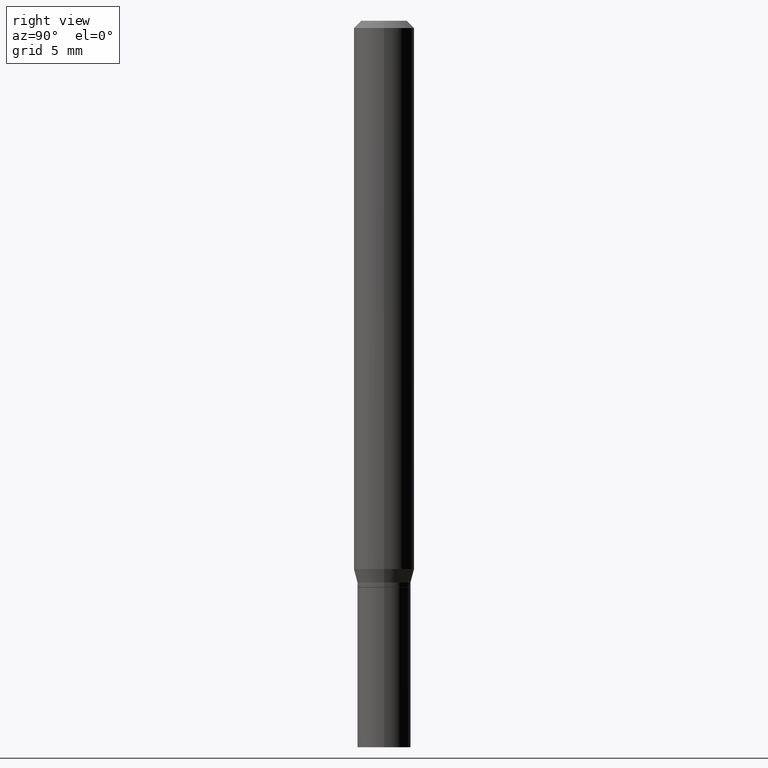
[diagram: clean part render]
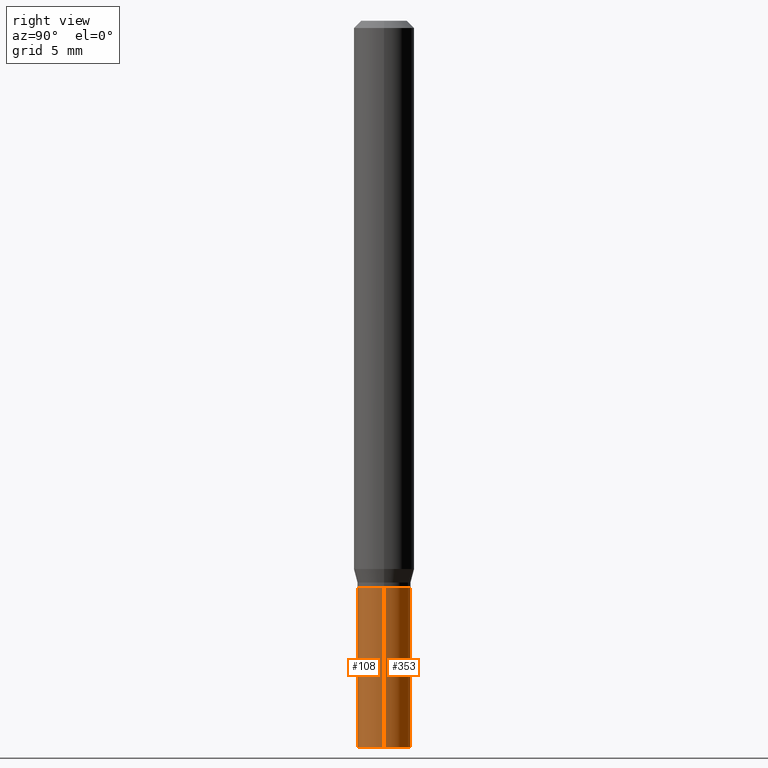
[diagram: same view with one multi-face feature highlighted, each face labeled with its STEP entity id]
A machine part, right view. The highlighted faces form ONE feature: a constant-radius fillet chain: 2 tangent blend faces with common blend radius 1.397 mm. The faces share edges in the B-rep.
Their STEP definitions:
[1] entity #108 (Cylinder):
#18 = DIRECTION ( 'NONE',  ( 1.000000000000000000, -6.982962677686266711E-15, 4.876176775795935793E-29 ) ) ;
#19 = VERTEX_POINT ( 'NONE', #263 ) ;
#22 = VECTOR ( 'NONE', #345, 39.37007874015748143 ) ;
#38 = CARTESIAN_POINT ( 'NONE',  ( -0.05500000000000000028, -4.270329082687544462E-15, -1.170000000000000151 ) ) ;
#53 = CYLINDRICAL_SURFACE ( 'NONE', #199, 0.05500000000000000028 ) ;
#57 = ORIENTED_EDGE ( 'NONE', *, *, #229, .F. ) ;
#80 = VERTEX_POINT ( 'NONE', #387 ) ;
#85 = VECTOR ( 'NONE', #156, 39.37007874015748143 ) ;
#88 = CARTESIAN_POINT ( 'NONE',  ( -0.05500000000000000028, 3.907985046680551042E-16, -2.705414299640198362E-30 ) ) ;
#89 = CARTESIAN_POINT ( 'NONE',  ( -0.05500000000000000028, -4.270329082687544462E-15, -1.500000000000000222 ) ) ;
#105 = DIRECTION ( 'NONE',  ( -2.445468806185136597E-29, 3.491481338843145583E-15, 1.000000000000000000 ) ) ;
#108 = ADVANCED_FACE ( 'NONE', ( #276 ), #53, .T. ) ;
#113 = CIRCLE ( 'NONE', #321, 0.05500000000000000028 ) ;
#122 = CARTESIAN_POINT ( 'NONE',  ( 3.668203209277704895E-29, -5.237222008264718177E-15, -1.500000000000000222 ) ) ;
#156 = DIRECTION ( 'NONE',  ( -2.445468806185136877E-29, 3.491481338843145188E-15, 1.000000000000000000 ) ) ;
#199 = AXIS2_PLACEMENT_3D ( 'NONE', #240, #400, #18 ) ;
#200 = AXIS2_PLACEMENT_3D ( 'NONE', #282, #207, #246 ) ;
#207 = DIRECTION ( 'NONE',  ( -2.445468806185136597E-29, 3.491481338843145583E-15, 1.000000000000000000 ) ) ;
#227 = VERTEX_POINT ( 'NONE', #89 ) ;
#229 = EDGE_CURVE ( 'NONE', #227, #464, #237, .T. ) ;
#237 = LINE ( 'NONE', #88, #22 ) ;
#240 = CARTESIAN_POINT ( 'NONE',  ( 0.000000000000000000, 0.000000000000000000, 0.000000000000000000 ) ) ;
#246 = DIRECTION ( 'NONE',  ( 1.000000000000000000, -6.982962677686262766E-15, 0.000000000000000000 ) ) ;
#248 = DIRECTION ( 'NONE',  ( 1.000000000000000000, -6.982962677686262766E-15, 0.000000000000000000 ) ) ;
#259 = EDGE_CURVE ( 'NONE', #80, #19, #338, .T. ) ;
#263 = CARTESIAN_POINT ( 'NONE',  ( 0.05500000000000000028, -4.469096113719225052E-15, -1.170000000000000151 ) ) ;
#272 = ORIENTED_EDGE ( 'NONE', *, *, #306, .F. ) ;
#275 = EDGE_CURVE ( 'NONE', #227, #80, #113, .T. ) ;
#276 = FACE_OUTER_BOUND ( 'NONE', #281, .T. ) ;
#281 = EDGE_LOOP ( 'NONE', ( #57, #347, #342, #272 ) ) ;
#282 = CARTESIAN_POINT ( 'NONE',  ( 2.861198503236610065E-29, -4.085033166446480067E-15, -1.170000000000000151 ) ) ;
#306 = EDGE_CURVE ( 'NONE', #464, #19, #438, .T. ) ;
#321 = AXIS2_PLACEMENT_3D ( 'NONE', #122, #105, #248 ) ;
#338 = LINE ( 'NONE', #450, #85 ) ;
#342 = ORIENTED_EDGE ( 'NONE', *, *, #259, .T. ) ;
#345 = DIRECTION ( 'NONE',  ( -2.445468806185136877E-29, 3.491481338843145188E-15, 1.000000000000000000 ) ) ;
#347 = ORIENTED_EDGE ( 'NONE', *, *, #275, .T. ) ;
#387 = CARTESIAN_POINT ( 'NONE',  ( 0.05500000000000000028, -5.621284955537463161E-15, -1.500000000000000222 ) ) ;
#400 = DIRECTION ( 'NONE',  ( -2.445468806185136597E-29, 3.491481338843145583E-15, 1.000000000000000000 ) ) ;
#438 = CIRCLE ( 'NONE', #200, 0.05500000000000000028 ) ;
#450 = CARTESIAN_POINT ( 'NONE',  ( 0.05500000000000000028, -3.840629472727446888E-16, 2.681897226687764826E-30 ) ) ;
#464 = VERTEX_POINT ( 'NONE', #38 ) ;
[2] entity #353 (Cylinder):
#19 = VERTEX_POINT ( 'NONE', #263 ) ;
#22 = VECTOR ( 'NONE', #345, 39.37007874015748143 ) ;
#24 = DIRECTION ( 'NONE',  ( -2.445468806185136597E-29, 3.491481338843145583E-15, 1.000000000000000000 ) ) ;
#28 = FACE_OUTER_BOUND ( 'NONE', #59, .T. ) ;
#38 = CARTESIAN_POINT ( 'NONE',  ( -0.05500000000000000028, -4.270329082687544462E-15, -1.170000000000000151 ) ) ;
#59 = EDGE_LOOP ( 'NONE', ( #170, #392, #334, #62 ) ) ;
#62 = ORIENTED_EDGE ( 'NONE', *, *, #259, .F. ) ;
#76 = CARTESIAN_POINT ( 'NONE',  ( 0.000000000000000000, 0.000000000000000000, 0.000000000000000000 ) ) ;
#80 = VERTEX_POINT ( 'NONE', #387 ) ;
#85 = VECTOR ( 'NONE', #156, 39.37007874015748143 ) ;
#88 = CARTESIAN_POINT ( 'NONE',  ( -0.05500000000000000028, 3.907985046680551042E-16, -2.705414299640198362E-30 ) ) ;
#89 = CARTESIAN_POINT ( 'NONE',  ( -0.05500000000000000028, -4.270329082687544462E-15, -1.500000000000000222 ) ) ;
#96 = CARTESIAN_POINT ( 'NONE',  ( 3.668203209277704895E-29, -5.237222008264718177E-15, -1.500000000000000222 ) ) ;
#144 = CYLINDRICAL_SURFACE ( 'NONE', #463, 0.05500000000000000028 ) ;
#156 = DIRECTION ( 'NONE',  ( -2.445468806185136877E-29, 3.491481338843145188E-15, 1.000000000000000000 ) ) ;
#164 = AXIS2_PLACEMENT_3D ( 'NONE', #377, #24, #441 ) ;
#170 = ORIENTED_EDGE ( 'NONE', *, *, #222, .T. ) ;
#180 = EDGE_CURVE ( 'NONE', #19, #464, #462, .T. ) ;
#203 = DIRECTION ( 'NONE',  ( -2.445468806185136597E-29, 3.491481338843145583E-15, 1.000000000000000000 ) ) ;
#208 = CIRCLE ( 'NONE', #221, 0.05500000000000000028 ) ;
#221 = AXIS2_PLACEMENT_3D ( 'NONE', #96, #203, #304 ) ;
#222 = EDGE_CURVE ( 'NONE', #80, #227, #208, .T. ) ;
#227 = VERTEX_POINT ( 'NONE', #89 ) ;
#229 = EDGE_CURVE ( 'NONE', #227, #464, #237, .T. ) ;
#237 = LINE ( 'NONE', #88, #22 ) ;
#259 = EDGE_CURVE ( 'NONE', #80, #19, #338, .T. ) ;
#263 = CARTESIAN_POINT ( 'NONE',  ( 0.05500000000000000028, -4.469096113719225052E-15, -1.170000000000000151 ) ) ;
#285 = DIRECTION ( 'NONE',  ( -2.445468806185136597E-29, 3.491481338843145583E-15, 1.000000000000000000 ) ) ;
#304 = DIRECTION ( 'NONE',  ( 1.000000000000000000, -6.982962677686262766E-15, 0.000000000000000000 ) ) ;
#334 = ORIENTED_EDGE ( 'NONE', *, *, #180, .F. ) ;
#338 = LINE ( 'NONE', #450, #85 ) ;
#345 = DIRECTION ( 'NONE',  ( -2.445468806185136877E-29, 3.491481338843145188E-15, 1.000000000000000000 ) ) ;
#349 = DIRECTION ( 'NONE',  ( 1.000000000000000000, -6.982962677686266711E-15, 4.876176775795935793E-29 ) ) ;
#353 = ADVANCED_FACE ( 'NONE', ( #28 ), #144, .T. ) ;
#377 = CARTESIAN_POINT ( 'NONE',  ( 2.861198503236610065E-29, -4.085033166446480067E-15, -1.170000000000000151 ) ) ;
#387 = CARTESIAN_POINT ( 'NONE',  ( 0.05500000000000000028, -5.621284955537463161E-15, -1.500000000000000222 ) ) ;
#392 = ORIENTED_EDGE ( 'NONE', *, *, #229, .T. ) ;
#441 = DIRECTION ( 'NONE',  ( 1.000000000000000000, -6.982962677686262766E-15, 0.000000000000000000 ) ) ;
#450 = CARTESIAN_POINT ( 'NONE',  ( 0.05500000000000000028, -3.840629472727446888E-16, 2.681897226687764826E-30 ) ) ;
#462 = CIRCLE ( 'NONE', #164, 0.05500000000000000028 ) ;
#463 = AXIS2_PLACEMENT_3D ( 'NONE', #76, #285, #349 ) ;
#464 = VERTEX_POINT ( 'NONE', #38 ) ;